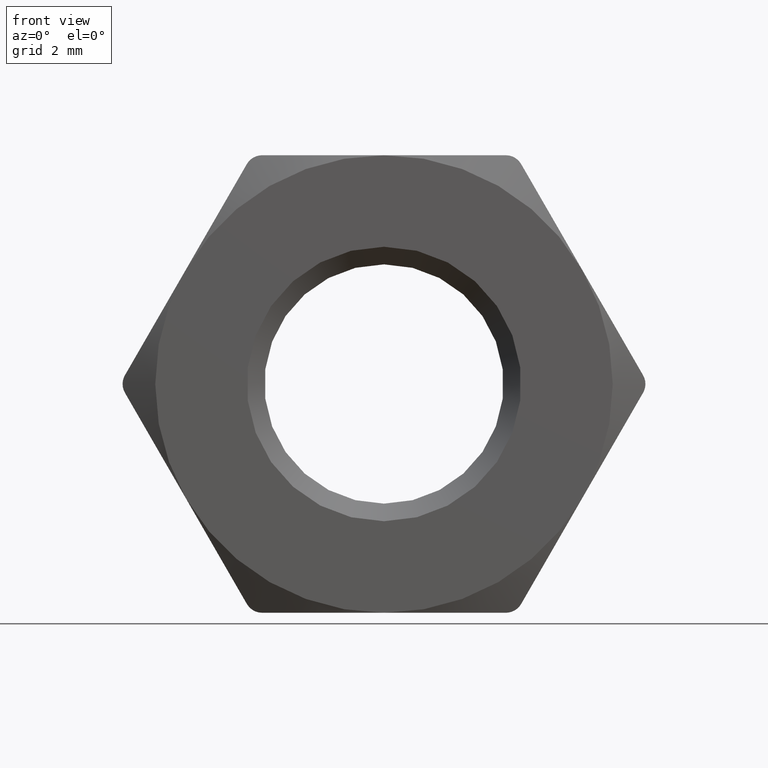
[diagram: clean part render]
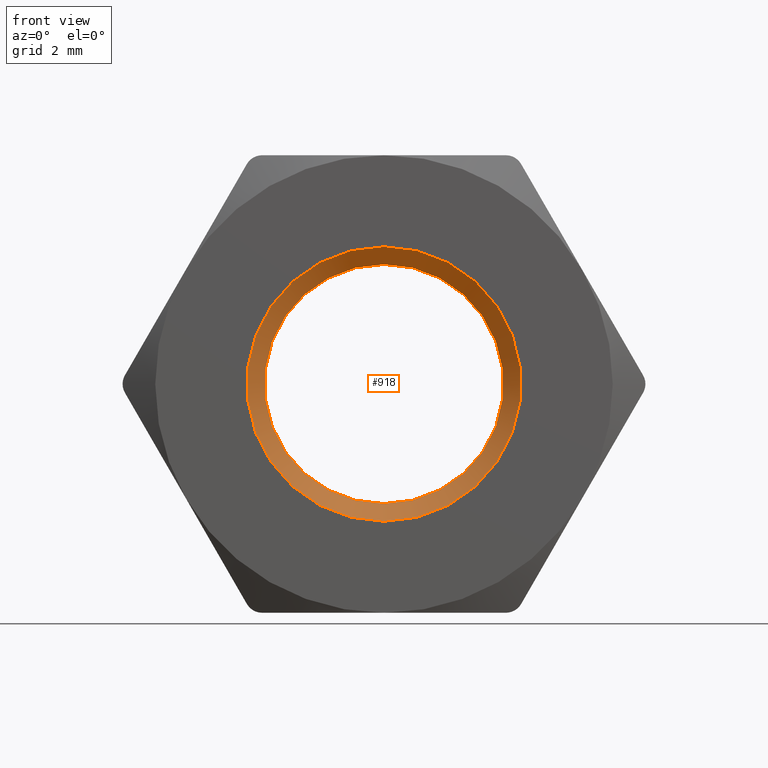
[diagram: same view with one face highlighted and labeled with its STEP entity id]
A machine part, front view. The second image highlights one B-rep face of the part: STEP entity #918.
In plain terms, the highlighted conical surface has half-angle 45 deg.
Its self-contained STEP definition (entity closure, byte-faithful):
#114 = CARTESIAN_POINT ( 'NONE',  ( 0.0000000000000000000, -2.749999999999996900, 0.0000000000000000000 ) ) ;
#179 = EDGE_LOOP ( 'NONE', ( #574 ) ) ;
#201 = CARTESIAN_POINT ( 'NONE',  ( 0.0000000000000000000, -3.250000000000000000, 0.0000000000000000000 ) ) ;
#208 = VERTEX_POINT ( 'NONE', #1311 ) ;
#219 = AXIS2_PLACEMENT_3D ( 'NONE', #530, #1308, #1467 ) ;
#256 = ORIENTED_EDGE ( 'NONE', *, *, #905, .F. ) ;
#260 = CONICAL_SURFACE ( 'NONE', #219, 3.899999999999999500, 0.7853981633974466100 ) ;
#530 = CARTESIAN_POINT ( 'NONE',  ( 0.0000000000000000000, -3.250000000000000000, 0.0000000000000000000 ) ) ;
#574 = ORIENTED_EDGE ( 'NONE', *, *, #1283, .F. ) ;
#827 = DIRECTION ( 'NONE',  ( 0.0000000000000000000, 0.0000000000000000000, 1.000000000000000000 ) ) ;
#857 = CIRCLE ( 'NONE', #1124, 3.399999999999998100 ) ;
#878 = EDGE_LOOP ( 'NONE', ( #256 ) ) ;
#895 = CIRCLE ( 'NONE', #1499, 3.899999999999999500 ) ;
#905 = EDGE_CURVE ( 'NONE', #1260, #1260, #895, .T. ) ;
#918 = ADVANCED_FACE ( 'NONE', ( #994, #1590 ), #260, .F. ) ;
#994 = FACE_BOUND ( 'NONE', #179, .T. ) ;
#1014 = DIRECTION ( 'NONE',  ( 0.0000000000000000000, 0.0000000000000000000, 1.000000000000000000 ) ) ;
#1124 = AXIS2_PLACEMENT_3D ( 'NONE', #114, #1628, #1014 ) ;
#1220 = DIRECTION ( 'NONE',  ( 0.0000000000000000000, 1.000000000000000000, 0.0000000000000000000 ) ) ;
#1260 = VERTEX_POINT ( 'NONE', #1428 ) ;
#1283 = EDGE_CURVE ( 'NONE', #208, #208, #857, .T. ) ;
#1308 = DIRECTION ( 'NONE',  ( -0.0000000000000000000, -1.000000000000000000, -0.0000000000000000000 ) ) ;
#1311 = CARTESIAN_POINT ( 'NONE',  ( 0.0000000000000000000, -2.749999999999996900, 3.399999999999998100 ) ) ;
#1428 = CARTESIAN_POINT ( 'NONE',  ( 0.0000000000000000000, -3.250000000000000000, 3.899999999999999500 ) ) ;
#1467 = DIRECTION ( 'NONE',  ( 0.0000000000000000000, 0.0000000000000000000, -1.000000000000000000 ) ) ;
#1499 = AXIS2_PLACEMENT_3D ( 'NONE', #201, #1220, #827 ) ;
#1590 = FACE_OUTER_BOUND ( 'NONE', #878, .T. ) ;
#1628 = DIRECTION ( 'NONE',  ( -0.0000000000000000000, -1.000000000000000000, -0.0000000000000000000 ) ) ;